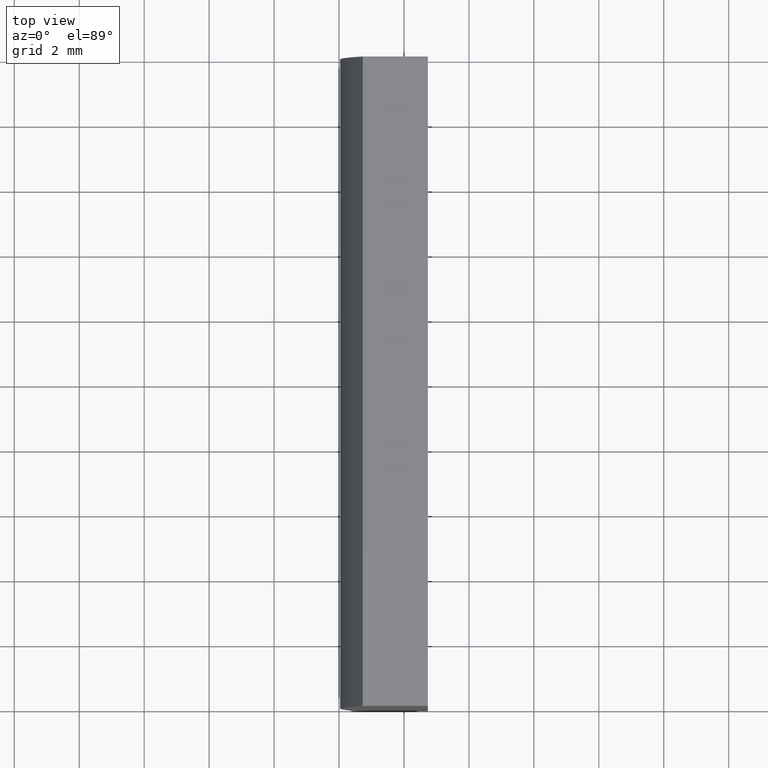
[diagram: clean part render]
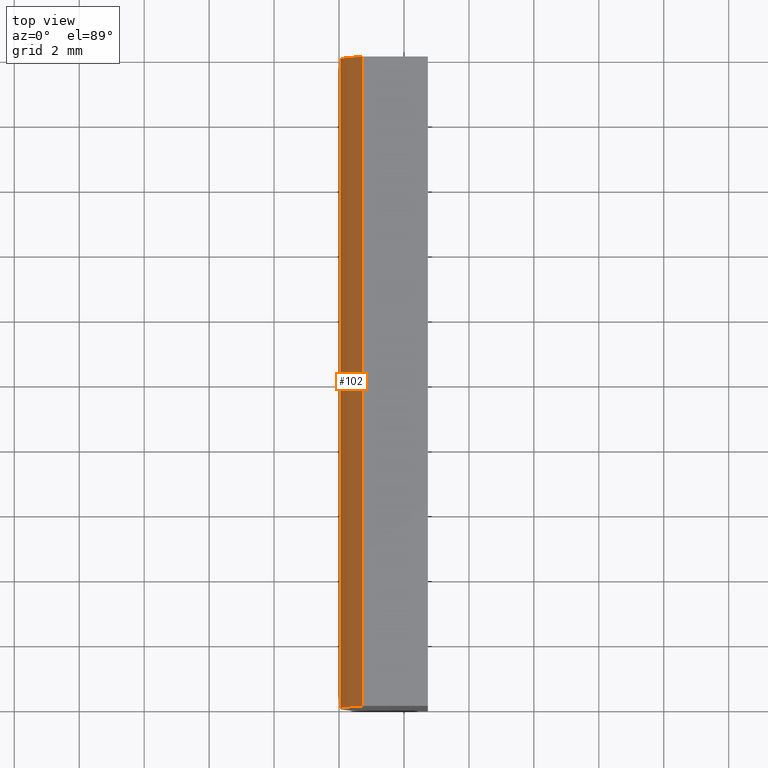
[diagram: same view with one face highlighted and labeled with its STEP entity id]
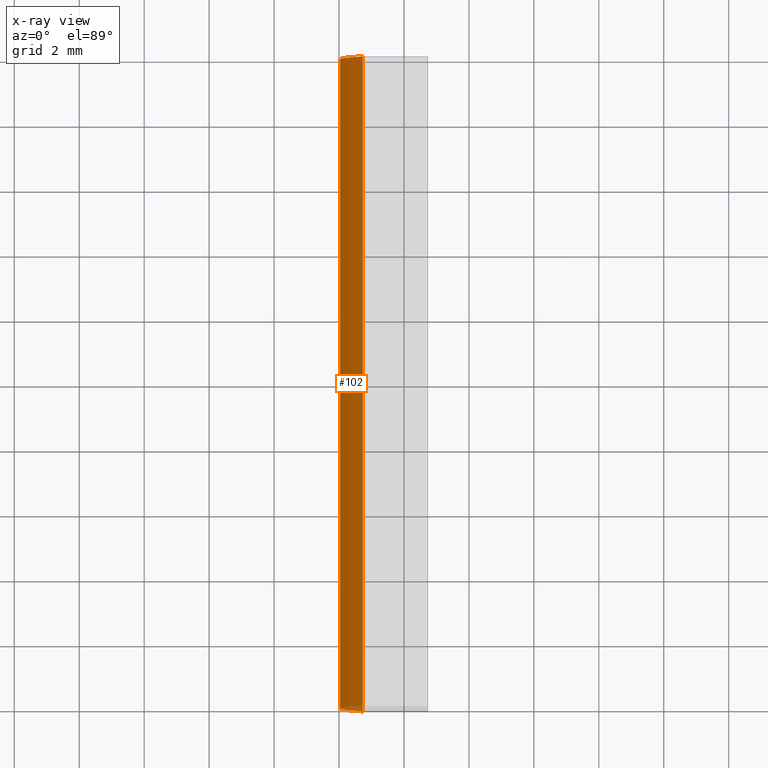
[diagram: x-ray of the same camera — body ghosted, the highlighted face saturated]
A machine part, top view. The second image highlights one B-rep face of the part: STEP entity #102.
The next image is the same camera in x-ray: the body ghosted, the highlighted face saturated — about 0% of this face is hidden behind the body in this view.
In plain terms, the highlighted cylindrical surface (partial cylindrical patch) has radius 18.32 mm, axis along (-0, -1, -0).
Its self-contained STEP definition (entity closure, byte-faithful):
#1 = DIRECTION ( 'NONE',  ( -0.0000000000000000000, -1.000000000000000000, -0.0000000000000000000 ) ) ;
#3 = CARTESIAN_POINT ( 'NONE',  ( -13.26927863628862900, 0.0000000000000000000, -5.000000000000000000 ) ) ;
#4 = DIRECTION ( 'NONE',  ( -0.0000000000000000000, -1.000000000000000000, -0.0000000000000000000 ) ) ;
#11 = ORIENTED_EDGE ( 'NONE', *, *, #118, .F. ) ;
#15 = CARTESIAN_POINT ( 'NONE',  ( 4.355204334851265500, 20.00000000000000000, 4.286263797015675000E-017 ) ) ;
#20 = EDGE_CURVE ( 'NONE', #156, #201, #103, .T. ) ;
#27 = VECTOR ( 'NONE', #1, 1000.000000000000000 ) ;
#47 = CARTESIAN_POINT ( 'NONE',  ( -13.26927863628862900, 20.00000000000000000, 5.000000000000000000 ) ) ;
#62 = VECTOR ( 'NONE', #109, 1000.000000000000000 ) ;
#67 = CYLINDRICAL_SURFACE ( 'NONE', #94, 18.32000000000000400 ) ;
#81 = DIRECTION ( 'NONE',  ( 0.0000000000000000000, 1.000000000000000000, 0.0000000000000000000 ) ) ;
#83 = DIRECTION ( 'NONE',  ( 0.0000000000000000000, 0.0000000000000000000, 1.000000000000000000 ) ) ;
#94 = AXIS2_PLACEMENT_3D ( 'NONE', #15, #4, #112 ) ;
#98 = DIRECTION ( 'NONE',  ( 0.0000000000000000000, 0.0000000000000000000, 1.000000000000000000 ) ) ;
#99 = CIRCLE ( 'NONE', #138, 18.32000000000000400 ) ;
#101 = CARTESIAN_POINT ( 'NONE',  ( 4.355204334851265500, 20.00000000000000000, 4.286263797015675000E-017 ) ) ;
#102 = ADVANCED_FACE ( 'NONE', ( #191 ), #67, .T. ) ;
#103 = LINE ( 'NONE', #47, #62 ) ;
#106 = EDGE_CURVE ( 'NONE', #176, #129, #150, .T. ) ;
#109 = DIRECTION ( 'NONE',  ( -0.0000000000000000000, -1.000000000000000000, -0.0000000000000000000 ) ) ;
#112 = DIRECTION ( 'NONE',  ( 0.0000000000000000000, 0.0000000000000000000, -1.000000000000000000 ) ) ;
#115 = CIRCLE ( 'NONE', #120, 18.32000000000000400 ) ;
#118 = EDGE_CURVE ( 'NONE', #176, #156, #115, .T. ) ;
#120 = AXIS2_PLACEMENT_3D ( 'NONE', #101, #190, #83 ) ;
#124 = ORIENTED_EDGE ( 'NONE', *, *, #196, .T. ) ;
#126 = CARTESIAN_POINT ( 'NONE',  ( -13.26927863628862900, 0.0000000000000000000, 5.000000000000000000 ) ) ;
#129 = VERTEX_POINT ( 'NONE', #3 ) ;
#133 = CARTESIAN_POINT ( 'NONE',  ( -13.26927863628862900, 20.00000000000000000, -5.000000000000000000 ) ) ;
#134 = ORIENTED_EDGE ( 'NONE', *, *, #106, .T. ) ;
#138 = AXIS2_PLACEMENT_3D ( 'NONE', #188, #81, #98 ) ;
#150 = LINE ( 'NONE', #133, #27 ) ;
#156 = VERTEX_POINT ( 'NONE', #175 ) ;
#163 = EDGE_LOOP ( 'NONE', ( #124, #193, #11, #134 ) ) ;
#170 = CARTESIAN_POINT ( 'NONE',  ( -13.26927863628862900, 20.00000000000000000, -5.000000000000000000 ) ) ;
#175 = CARTESIAN_POINT ( 'NONE',  ( -13.26927863628862900, 20.00000000000000000, 5.000000000000000000 ) ) ;
#176 = VERTEX_POINT ( 'NONE', #170 ) ;
#188 = CARTESIAN_POINT ( 'NONE',  ( 4.355204334851265500, 0.0000000000000000000, 4.286263797015675000E-017 ) ) ;
#190 = DIRECTION ( 'NONE',  ( 0.0000000000000000000, 1.000000000000000000, 0.0000000000000000000 ) ) ;
#191 = FACE_OUTER_BOUND ( 'NONE', #163, .T. ) ;
#193 = ORIENTED_EDGE ( 'NONE', *, *, #20, .F. ) ;
#196 = EDGE_CURVE ( 'NONE', #129, #201, #99, .T. ) ;
#201 = VERTEX_POINT ( 'NONE', #126 ) ;